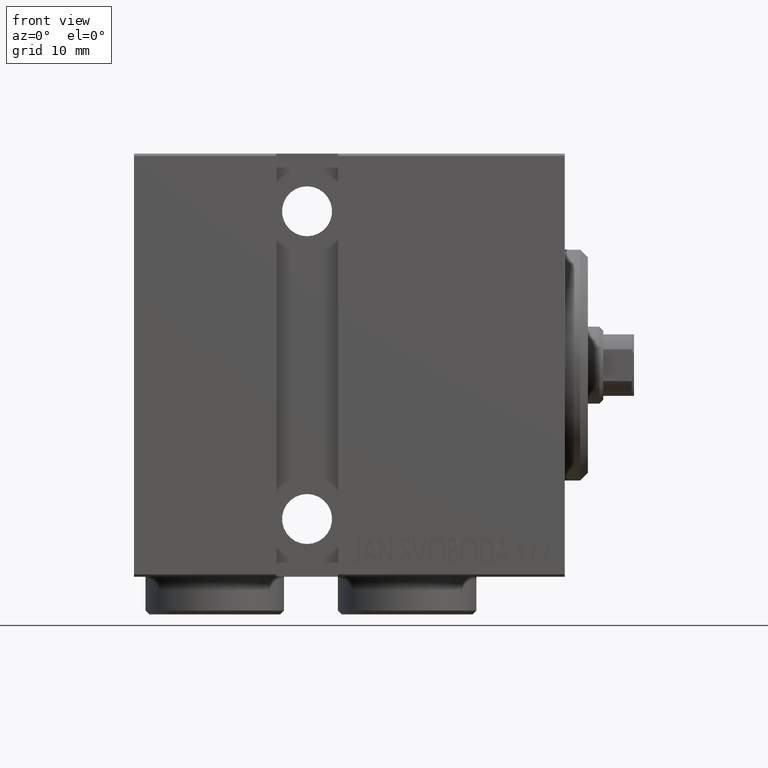
[diagram: clean part render]
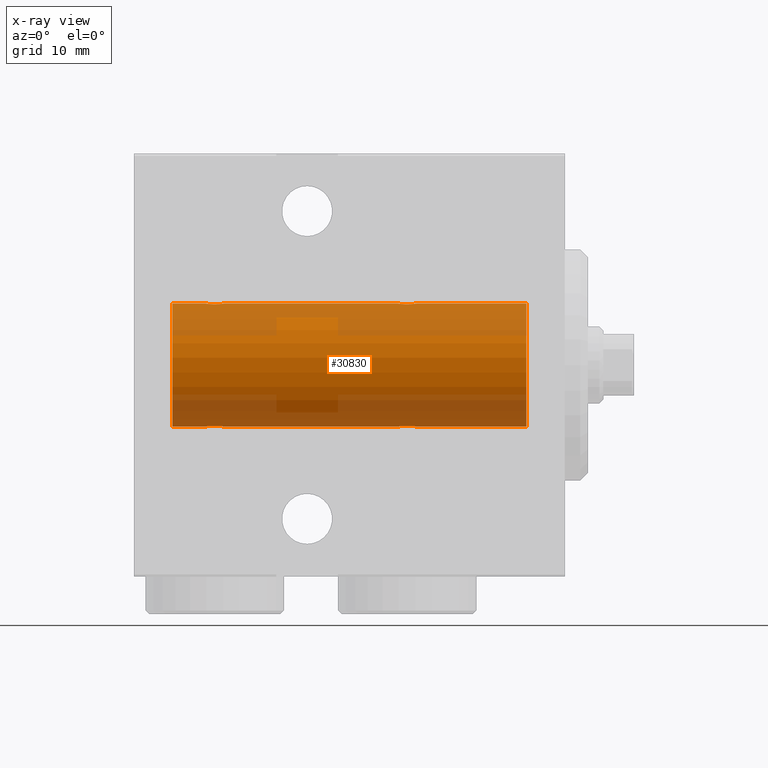
[diagram: x-ray — body ghosted, one internal face saturated and labeled with its STEP entity id]
A machine part, front view, then the same camera in x-ray: the body is ghosted and one INTERNAL B-rep face — a face not visible from any outside direction — is saturated and labeled: STEP entity #30830.
In plain terms, the highlighted cylindrical surface (partial cylindrical patch) has radius 8 mm, axis along (1, 0, -0).
Its self-contained STEP definition (entity closure, byte-faithful):
#101 = LINE ( 'NONE', #20419, #5134 ) ;
#809 = CARTESIAN_POINT ( 'NONE',  ( 45.66380854908764775, 1.249938428426579540, 7.901750054830717573 ) ) ;
#884 = CARTESIAN_POINT ( 'NONE',  ( 45.82459038316879685, 1.209888574283866980, -7.907997942808293601 ) ) ;
#937 = CARTESIAN_POINT ( 'NONE',  ( 20.41880150506445091, 1.250030652953407762, 7.901735465557271354 ) ) ;
#1016 = EDGE_CURVE ( 'NONE', #24672, #5187, #25077, .T. ) ;
#1116 = AXIS2_PLACEMENT_3D ( 'NONE', #3179, #20583, #23303 ) ;
#1117 = CARTESIAN_POINT ( 'NONE',  ( 46.50031982237067751, 0.7674545364220052290, -7.963965305651049320 ) ) ;
#1295 = EDGE_CURVE ( 'NONE', #14791, #41616, #14912, .T. ) ;
#1326 = CARTESIAN_POINT ( 'NONE',  ( 46.12982270639373183, 1.092113850918999818, -7.925358570881163800 ) ) ;
#1373 = CARTESIAN_POINT ( 'NONE',  ( 19.25000000000000355, -4.052141811848771341E-23, 7.999999999999998224 ) ) ;
#1595 = CARTESIAN_POINT ( 'NONE',  ( 19.31391055412277069, 0.4029817482954574648, 7.990203133273719338 ) ) ;
#1609 = CARTESIAN_POINT ( 'NONE',  ( 51.00000000000000000, 9.797174393178823685E-16, -7.999999999999998224 ) ) ;
#1639 = VECTOR ( 'NONE', #10267, 1000.000000000000000 ) ;
#1676 = VECTOR ( 'NONE', #33709, 1000.000000000000000 ) ;
#1779 = CARTESIAN_POINT ( 'NONE',  ( 44.87074834296262082, 1.092266057037466265, -7.925334523600929160 ) ) ;
#1853 = CIRCLE ( 'NONE', #1116, 7.999999999999998224 ) ;
#2363 = ORIENTED_EDGE ( 'NONE', *, *, #22024, .T. ) ;
#2923 = DIRECTION ( 'NONE',  ( -1.000000000000000000, -0.000000000000000000, -0.000000000000000000 ) ) ;
#3179 = CARTESIAN_POINT ( 'NONE',  ( 51.00000000000000000, 0.000000000000000000, 0.000000000000000000 ) ) ;
#4412 = VERTEX_POINT ( 'NONE', #21313 ) ;
#4881 = CARTESIAN_POINT ( 'NONE',  ( 46.74181525892407052, 0.1645871186493928495, -7.998709545350109806 ) ) ;
#5134 = VECTOR ( 'NONE', #43879, 1000.000000000000000 ) ;
#5187 = VERTEX_POINT ( 'NONE', #40761 ) ;
#5192 = CARTESIAN_POINT ( 'NONE',  ( 44.73260908389369916, 1.000368629246204843, 7.938072339095200824 ) ) ;
#5210 = CARTESIAN_POINT ( 'NONE',  ( 19.40826977845302537, 0.6304521543648575754, -7.976560245937306171 ) ) ;
#5630 = CARTESIAN_POINT ( 'NONE',  ( 45.82849869077222138, 1.217000984963205967, 7.907141142849010151 ) ) ;
#5637 = EDGE_CURVE ( 'NONE', #11775, #31335, #36059, .T. ) ;
#5647 = EDGE_CURVE ( 'NONE', #24070, #33244, #1853, .T. ) ;
#5839 = CARTESIAN_POINT ( 'NONE',  ( 46.74999999999999289, -8.213474395867002827E-16, 7.999999999999998224 ) ) ;
#6822 = ORIENTED_EDGE ( 'NONE', *, *, #13249, .F. ) ;
#6951 = CARTESIAN_POINT ( 'NONE',  ( 44.25000000000000711, -6.574401834785964054E-15, -7.999999999999998224 ) ) ;
#7593 = CARTESIAN_POINT ( 'NONE',  ( 45.58119849493557751, 1.250030652953401322, -7.901735465557271354 ) ) ;
#7762 = EDGE_LOOP ( 'NONE', ( #28486, #19789, #22160, #30162, #29212, #25368, #13937, #43074, #6822, #2363, #14387, #10268 ) ) ;
#8536 = CARTESIAN_POINT ( 'NONE',  ( 46.49884501198091158, 0.7689725568822900481, 7.963798983873341619 ) ) ;
#8553 = CARTESIAN_POINT ( 'NONE',  ( 19.87074834296262438, 1.092266057037466487, -7.925334523600932712 ) ) ;
#8723 = CARTESIAN_POINT ( 'NONE',  ( 19.87017729360625395, 1.092113850919000928, 7.925358570881162024 ) ) ;
#9001 = CARTESIAN_POINT ( 'NONE',  ( 21.75000000000000000, 0.08164616652084619175, -7.999999999999998224 ) ) ;
#9188 = CARTESIAN_POINT ( 'NONE',  ( 44.25000000000001421, 0.08164616652084527582, 7.999999999999998224 ) ) ;
#9230 = DIRECTION ( 'NONE',  ( -1.000000000000000000, -0.000000000000000000, -0.000000000000000000 ) ) ;
#9598 = LINE ( 'NONE', #44006, #1639 ) ;
#10075 = DIRECTION ( 'NONE',  ( 0.000000000000000000, 0.000000000000000000, 1.000000000000000000 ) ) ;
#10267 = DIRECTION ( 'NONE',  ( -1.000000000000000000, -0.000000000000000000, -0.000000000000000000 ) ) ;
#10268 = ORIENTED_EDGE ( 'NONE', *, *, #1295, .T. ) ;
#11199 = CARTESIAN_POINT ( 'NONE',  ( 20.33582908309688975, 1.241868426634447298, 7.903038949453013551 ) ) ;
#11405 = CARTESIAN_POINT ( 'NONE',  ( 21.49884501198092579, 0.7689725568822877166, 7.963798983873341619 ) ) ;
#11475 = VECTOR ( 'NONE', #2923, 1000.000000000000000 ) ;
#11630 = CARTESIAN_POINT ( 'NONE',  ( 21.71733208341543175, 0.3277916934117525161, 7.994719249713582165 ) ) ;
#11684 = CARTESIAN_POINT ( 'NONE',  ( 20.17150130922778573, 1.217000984963200860, -7.907141142849008375 ) ) ;
#11775 = VERTEX_POINT ( 'NONE', #13368 ) ;
#12332 = CARTESIAN_POINT ( 'NONE',  ( 45.09742586614095217, 1.186236229830393452, 7.911627449023366232 ) ) ;
#13249 = EDGE_CURVE ( 'NONE', #35853, #31335, #22825, .T. ) ;
#13254 = CARTESIAN_POINT ( 'NONE',  ( 51.00000000000000000, 0.000000000000000000, 7.999999999999998224 ) ) ;
#13368 = CARTESIAN_POINT ( 'NONE',  ( 4.999999999999997335, 0.000000000000000000, 7.999999999999998224 ) ) ;
#13431 = CARTESIAN_POINT ( 'NONE',  ( 4.999999999999997335, 0.000000000000000000, 0.000000000000000000 ) ) ;
#13520 = DIRECTION ( 'NONE',  ( 0.000000000000000000, 0.000000000000000000, 1.000000000000000000 ) ) ;
#13785 = CARTESIAN_POINT ( 'NONE',  ( 46.74999999999999289, 9.797173987957720246E-16, -7.999999999999998224 ) ) ;
#13937 = ORIENTED_EDGE ( 'NONE', *, *, #31970, .T. ) ;
#13975 = DIRECTION ( 'NONE',  ( -1.000000000000000000, -0.000000000000000000, -0.000000000000000000 ) ) ;
#14387 = ORIENTED_EDGE ( 'NONE', *, *, #27807, .F. ) ;
#14411 = CARTESIAN_POINT ( 'NONE',  ( 45.17540961683120315, 1.209888574283871199, 7.907997942808294489 ) ) ;
#14551 = CARTESIAN_POINT ( 'NONE',  ( 20.66380854908764064, 1.249938428426578652, 7.901750054830715797 ) ) ;
#14766 = CARTESIAN_POINT ( 'NONE',  ( 21.26853298044905216, 0.9991832710565867748, 7.938201675418735448 ) ) ;
#14791 = VERTEX_POINT ( 'NONE', #6951 ) ;
#14912 = B_SPLINE_CURVE_WITH_KNOTS ( 'NONE', 3,
 ( #38211, #38853, #41982, #35277, #21423, #28366, #1779, #35045, #21876, #7593, #35495, #884, #18073, #1326, #21215, #1117, #34840, #28798, #31927, #4881, #18508, #15149 ),
 .UNSPECIFIED., .F., .F.,
 ( 4, 2, 2, 2, 2, 2, 2, 2, 2, 2, 4 ),
 ( 7.505074081152076538E-19, 0.0004892585179630999388, 0.0009785170359261990101, 0.001467775553889298082, 0.001957034071852397587, 0.002201663330833957422, 0.002446292589815517258, 0.002935551107778656445, 0.003424809625741795632, 0.003669438884723368911, 0.003914068143704942625 ),
 .UNSPECIFIED. ) ;
#15029 = CARTESIAN_POINT ( 'NONE',  ( 19.25000000000000711, -6.253246997522681077E-15, -7.999999999999998224 ) ) ;
#15149 = CARTESIAN_POINT ( 'NONE',  ( 46.74999999999999289, 9.797173987957720246E-16, -7.999999999999998224 ) ) ;
#15249 = CARTESIAN_POINT ( 'NONE',  ( 44.49968017762931538, 0.7674545364220040078, 7.963965305651043991 ) ) ;
#15910 = CARTESIAN_POINT ( 'NONE',  ( 45.41880150506444380, 1.250030652953406429, 7.901735465557269578 ) ) ;
#16197 = EDGE_CURVE ( 'NONE', #4412, #24672, #33373, .T. ) ;
#17373 = VECTOR ( 'NONE', #39580, 1000.000000000000000 ) ;
#17988 = B_SPLINE_CURVE_WITH_KNOTS ( 'NONE', 3,
 ( #15029, #39618, #42295, #5210, #39160, #36051, #8553, #11684, #28907, #22196, #29124, #42956, #42531, #42077, #35814, #28670, #32482, #35597, #25121, #25354, #9001, #36261 ),
 .UNSPECIFIED., .F., .F.,
 ( 4, 2, 2, 2, 2, 2, 2, 2, 2, 2, 4 ),
 ( 4.384776375612755932E-19, 0.0004892585179631271522, 0.0009785170359262538708, 0.001467775553889380698, 0.001957034071852507308, 0.002201663330834065842, 0.002446292589815623510, 0.002935551107778730170, 0.003424809625741835964, 0.003669438884723391463, 0.003914068143704946962 ),
 .UNSPECIFIED. ) ;
#18073 = CARTESIAN_POINT ( 'NONE',  ( 45.90257413385905494, 1.186236229830389455, -7.911627449023362679 ) ) ;
#18508 = CARTESIAN_POINT ( 'NONE',  ( 46.75000000000000000, 0.08164616652084634441, -8.000000000000000000 ) ) ;
#18559 = CARTESIAN_POINT ( 'NONE',  ( 19.49968017762932959, 0.7674545364220068944, 7.963965305651043991 ) ) ;
#18828 = CARTESIAN_POINT ( 'NONE',  ( 46.59173022154698884, 0.6304521543648644588, 7.976560245937302618 ) ) ;
#19054 = CARTESIAN_POINT ( 'NONE',  ( 46.71733208341543531, 0.3277916934117521830, 7.994719249713582165 ) ) ;
#19789 = ORIENTED_EDGE ( 'NONE', *, *, #5647, .F. ) ;
#20273 = CARTESIAN_POINT ( 'NONE',  ( 21.75000000000000355, 9.797173987965608855E-16, -7.999999999999998224 ) ) ;
#20419 = CARTESIAN_POINT ( 'NONE',  ( 51.00000000000000000, 0.000000000000000000, 7.999999999999998224 ) ) ;
#20583 = DIRECTION ( 'NONE',  ( -1.000000000000000000, 0.000000000000000000, 0.000000000000000000 ) ) ;
#21215 = CARTESIAN_POINT ( 'NONE',  ( 46.26739091610629373, 1.000368629246204399, -7.938072339095200824 ) ) ;
#21313 = CARTESIAN_POINT ( 'NONE',  ( 44.25000000000000711, -4.052181254894032391E-23, 7.999999999999998224 ) ) ;
#21423 = CARTESIAN_POINT ( 'NONE',  ( 44.50115498801908842, 0.7689725568822843860, -7.963798983873343396 ) ) ;
#21567 = B_SPLINE_CURVE_WITH_KNOTS ( 'NONE', 3,
 ( #5839, #36245, #19054, #18828, #8536, #32887, #29322, #5630, #809, #15910, #29556, #14411, #12332, #32466, #5192, #15249, #26218, #34974, #28890, #39811, #9188, #36450 ),
 .UNSPECIFIED., .F., .F.,
 ( 4, 2, 2, 2, 2, 2, 2, 2, 2, 2, 4 ),
 ( 7.980102535687292301E-19, 0.0004892585179631255259, 0.0009785170359262504013, 0.001467775553889375277, 0.001957034071852499935, 0.002201663330834062373, 0.002446292589815624811, 0.002935551107778730170, 0.003424809625741836398, 0.003669438884723392764, 0.003914068143704949564 ),
 .UNSPECIFIED. ) ;
#21674 = VERTEX_POINT ( 'NONE', #38359 ) ;
#21876 = CARTESIAN_POINT ( 'NONE',  ( 45.33619145091235225, 1.249938428426572656, -7.901750054830718462 ) ) ;
#21927 = CARTESIAN_POINT ( 'NONE',  ( 19.40795032378956364, 0.6298709050361938067, 7.976604806854522778 ) ) ;
#22024 = EDGE_CURVE ( 'NONE', #35853, #36933, #17988, .T. ) ;
#22160 = ORIENTED_EDGE ( 'NONE', *, *, #25785, .T. ) ;
#22196 = CARTESIAN_POINT ( 'NONE',  ( 20.58119849493555620, 1.250030652953401988, -7.901735465557267801 ) ) ;
#22825 = LINE ( 'NONE', #30418, #11475 ) ;
#23303 = DIRECTION ( 'NONE',  ( 0.000000000000000000, 0.000000000000000000, 1.000000000000000000 ) ) ;
#24035 = CARTESIAN_POINT ( 'NONE',  ( 21.75000000000000000, -5.069746561688950233E-16, 7.999999999999998224 ) ) ;
#24070 = VERTEX_POINT ( 'NONE', #31993 ) ;
#24442 = VECTOR ( 'NONE', #9230, 1000.000000000000000 ) ;
#24669 = AXIS2_PLACEMENT_3D ( 'NONE', #13431, #37350, #10075 ) ;
#24672 = VERTEX_POINT ( 'NONE', #24035 ) ;
#24863 = CARTESIAN_POINT ( 'NONE',  ( 19.25818474107593659, 0.1645871186493936822, 7.998709545350108918 ) ) ;
#25077 = B_SPLINE_CURVE_WITH_KNOTS ( 'NONE', 3,
 ( #39111, #31760, #11630, #35758, #11405, #14766, #31530, #42475, #14551, #937, #11199, #38673, #28206, #8723, #25731, #18559, #21927, #1595, #28621, #24863, #38465, #1373 ),
 .UNSPECIFIED., .F., .F.,
 ( 4, 2, 2, 2, 2, 2, 2, 2, 2, 2, 4 ),
 ( 4.925698363725794783E-19, 0.0004892585179631285617, 0.0009785170359262564729, 0.001467775553889384601, 0.001957034071852512512, 0.002201663330834071480, 0.002446292589815630015, 0.002935551107778737977, 0.003424809625741846372, 0.003669438884723400570, 0.003914068143704954768 ),
 .UNSPECIFIED. ) ;
#25121 = CARTESIAN_POINT ( 'NONE',  ( 21.70976650520091411, 0.3250523954932730830, -7.993796610540221614 ) ) ;
#25354 = CARTESIAN_POINT ( 'NONE',  ( 21.74181525892405986, 0.1645871186493928773, -7.998709545350109806 ) ) ;
#25368 = ORIENTED_EDGE ( 'NONE', *, *, #1016, .T. ) ;
#25550 = CARTESIAN_POINT ( 'NONE',  ( 4.999999999999997335, 9.797174393178823685E-16, -7.999999999999998224 ) ) ;
#25731 = CARTESIAN_POINT ( 'NONE',  ( 19.73260908389369916, 1.000368629246206842, 7.938072339095197272 ) ) ;
#25785 = EDGE_CURVE ( 'NONE', #24070, #21674, #9598, .T. ) ;
#25977 = LINE ( 'NONE', #1609, #17373 ) ;
#26218 = CARTESIAN_POINT ( 'NONE',  ( 44.40795032378955653, 0.6298709050361934736, 7.976604806854521001 ) ) ;
#26971 = FACE_OUTER_BOUND ( 'NONE', #7762, .T. ) ;
#27807 = EDGE_CURVE ( 'NONE', #14791, #36933, #39752, .T. ) ;
#28159 = EDGE_CURVE ( 'NONE', #21674, #4412, #21567, .T. ) ;
#28206 = CARTESIAN_POINT ( 'NONE',  ( 20.09742586614093085, 1.186236229830392341, 7.911627449023364456 ) ) ;
#28366 = CARTESIAN_POINT ( 'NONE',  ( 44.73146701955094784, 0.9991832710565826670, -7.938201675418733672 ) ) ;
#28486 = ORIENTED_EDGE ( 'NONE', *, *, #42456, .F. ) ;
#28621 = CARTESIAN_POINT ( 'NONE',  ( 19.29023349479908234, 0.3250523954932734716, 7.993796610540219838 ) ) ;
#28670 = CARTESIAN_POINT ( 'NONE',  ( 21.50031982237068107, 0.7674545364220053401, -7.963965305651049320 ) ) ;
#28798 = CARTESIAN_POINT ( 'NONE',  ( 46.68608944587722220, 0.4029817482954573538, -7.990203133273721114 ) ) ;
#28890 = CARTESIAN_POINT ( 'NONE',  ( 44.29023349479908234, 0.3250523954932734161, 7.993796610540221614 ) ) ;
#28907 = CARTESIAN_POINT ( 'NONE',  ( 20.33619145091235936, 1.249938428426572656, -7.901750054830717573 ) ) ;
#29124 = CARTESIAN_POINT ( 'NONE',  ( 20.66417091690312091, 1.241868426634441747, -7.903038949453011774 ) ) ;
#29212 = ORIENTED_EDGE ( 'NONE', *, *, #16197, .T. ) ;
#29322 = CARTESIAN_POINT ( 'NONE',  ( 46.12925165703737207, 1.092266057037471594, 7.925334523600927383 ) ) ;
#29556 = CARTESIAN_POINT ( 'NONE',  ( 45.33582908309688975, 1.241868426634446854, 7.903038949453013551 ) ) ;
#30162 = ORIENTED_EDGE ( 'NONE', *, *, #28159, .T. ) ;
#30418 = CARTESIAN_POINT ( 'NONE',  ( 51.00000000000000000, 9.797174393178823685E-16, -7.999999999999998224 ) ) ;
#30830 = ADVANCED_FACE ( 'NONE', ( #26971 ), #44142, .F. ) ;
#30974 = CARTESIAN_POINT ( 'NONE',  ( 51.00000000000000000, 0.000000000000000000, 0.000000000000000000 ) ) ;
#31335 = VERTEX_POINT ( 'NONE', #25550 ) ;
#31529 = CARTESIAN_POINT ( 'NONE',  ( 51.00000000000000000, 9.797174393178823685E-16, -7.999999999999998224 ) ) ;
#31530 = CARTESIAN_POINT ( 'NONE',  ( 21.12925165703737918, 1.092266057037473592, 7.925334523600929160 ) ) ;
#31760 = CARTESIAN_POINT ( 'NONE',  ( 21.75000000000000000, 0.1654536524218027937, 7.999999999999998224 ) ) ;
#31927 = CARTESIAN_POINT ( 'NONE',  ( 46.70976650520091766, 0.3250523954932729165, -7.993796610540221614 ) ) ;
#31970 = EDGE_CURVE ( 'NONE', #5187, #11775, #101, .T. ) ;
#31993 = CARTESIAN_POINT ( 'NONE',  ( 51.00000000000000000, 0.000000000000000000, 7.999999999999998224 ) ) ;
#32466 = CARTESIAN_POINT ( 'NONE',  ( 44.87017729360625395, 1.092113850919002038, 7.925358570881160247 ) ) ;
#32482 = CARTESIAN_POINT ( 'NONE',  ( 21.59204967621043991, 0.6298709050361920303, -7.976604806854521001 ) ) ;
#32887 = CARTESIAN_POINT ( 'NONE',  ( 46.26853298044905216, 0.9991832710565884401, 7.938201675418735448 ) ) ;
#33244 = VERTEX_POINT ( 'NONE', #31529 ) ;
#33373 = LINE ( 'NONE', #13254, #24442 ) ;
#33709 = DIRECTION ( 'NONE',  ( -1.000000000000000000, -0.000000000000000000, -0.000000000000000000 ) ) ;
#34840 = CARTESIAN_POINT ( 'NONE',  ( 46.59204967621045057, 0.6298709050361936956, -7.976604806854522778 ) ) ;
#34974 = CARTESIAN_POINT ( 'NONE',  ( 44.31391055412278490, 0.4029817482954566876, 7.990203133273719338 ) ) ;
#35045 = CARTESIAN_POINT ( 'NONE',  ( 45.17150130922779283, 1.217000984963200416, -7.907141142849010151 ) ) ;
#35277 = CARTESIAN_POINT ( 'NONE',  ( 44.40826977845300405, 0.6304521543648577975, -7.976560245937304394 ) ) ;
#35495 = CARTESIAN_POINT ( 'NONE',  ( 45.66417091690310315, 1.241868426634441969, -7.903038949453011774 ) ) ;
#35597 = CARTESIAN_POINT ( 'NONE',  ( 21.68608944587722576, 0.4029817482954558550, -7.990203133273719338 ) ) ;
#35758 = CARTESIAN_POINT ( 'NONE',  ( 21.59173022154696753, 0.6304521543648642368, 7.976560245937300841 ) ) ;
#35814 = CARTESIAN_POINT ( 'NONE',  ( 21.26739091610630084, 1.000368629246204399, -7.938072339095202601 ) ) ;
#35853 = VERTEX_POINT ( 'NONE', #38608 ) ;
#36051 = CARTESIAN_POINT ( 'NONE',  ( 19.73146701955095494, 0.9991832710565806686, -7.938201675418735448 ) ) ;
#36059 = CIRCLE ( 'NONE', #24669, 7.999999999999998224 ) ;
#36245 = CARTESIAN_POINT ( 'NONE',  ( 46.75000000000000000, 0.1654536524218023774, 7.999999999999998224 ) ) ;
#36261 = CARTESIAN_POINT ( 'NONE',  ( 21.75000000000000355, 9.797173987965608855E-16, -7.999999999999998224 ) ) ;
#36450 = CARTESIAN_POINT ( 'NONE',  ( 44.25000000000000711, -4.052181254894032391E-23, 7.999999999999998224 ) ) ;
#36549 = AXIS2_PLACEMENT_3D ( 'NONE', #30974, #13975, #13520 ) ;
#36933 = VERTEX_POINT ( 'NONE', #20273 ) ;
#37350 = DIRECTION ( 'NONE',  ( -1.000000000000000000, 0.000000000000000000, 0.000000000000000000 ) ) ;
#38211 = CARTESIAN_POINT ( 'NONE',  ( 44.25000000000000711, -6.574401834785964054E-15, -7.999999999999998224 ) ) ;
#38359 = CARTESIAN_POINT ( 'NONE',  ( 46.74999999999999289, -8.213474395867002827E-16, 7.999999999999998224 ) ) ;
#38465 = CARTESIAN_POINT ( 'NONE',  ( 19.25000000000000355, 0.08164616652084565052, 7.999999999999996447 ) ) ;
#38608 = CARTESIAN_POINT ( 'NONE',  ( 19.25000000000000711, -6.253246997522681077E-15, -7.999999999999998224 ) ) ;
#38673 = CARTESIAN_POINT ( 'NONE',  ( 20.17540961683120315, 1.209888574283871199, 7.907997942808293601 ) ) ;
#38853 = CARTESIAN_POINT ( 'NONE',  ( 44.25000000000001421, 0.1654536524217962712, -8.000000000000000000 ) ) ;
#39111 = CARTESIAN_POINT ( 'NONE',  ( 21.75000000000000000, -5.069746561688950233E-16, 7.999999999999998224 ) ) ;
#39160 = CARTESIAN_POINT ( 'NONE',  ( 19.50115498801909197, 0.7689725568822818325, -7.963798983873345172 ) ) ;
#39580 = DIRECTION ( 'NONE',  ( -1.000000000000000000, -0.000000000000000000, -0.000000000000000000 ) ) ;
#39618 = CARTESIAN_POINT ( 'NONE',  ( 19.25000000000000711, 0.1654536524217966875, -8.000000000000000000 ) ) ;
#39752 = LINE ( 'NONE', #40183, #1676 ) ;
#39811 = CARTESIAN_POINT ( 'NONE',  ( 44.25818474107593659, 0.1645871186493931548, 7.998709545350111583 ) ) ;
#40183 = CARTESIAN_POINT ( 'NONE',  ( 51.00000000000000000, 9.797174393178823685E-16, -7.999999999999998224 ) ) ;
#40761 = CARTESIAN_POINT ( 'NONE',  ( 19.25000000000000355, -4.052141811848771341E-23, 7.999999999999998224 ) ) ;
#41616 = VERTEX_POINT ( 'NONE', #13785 ) ;
#41982 = CARTESIAN_POINT ( 'NONE',  ( 44.28266791658455759, 0.3277916934117462988, -7.994719249713585718 ) ) ;
#42077 = CARTESIAN_POINT ( 'NONE',  ( 21.12982270639374605, 1.092113850918997153, -7.925358570881165576 ) ) ;
#42295 = CARTESIAN_POINT ( 'NONE',  ( 19.28266791658456825, 0.3277916934117463543, -7.994719249713585718 ) ) ;
#42456 = EDGE_CURVE ( 'NONE', #33244, #41616, #25977, .T. ) ;
#42475 = CARTESIAN_POINT ( 'NONE',  ( 20.82849869077221783, 1.217000984963207966, 7.907141142849010151 ) ) ;
#42531 = CARTESIAN_POINT ( 'NONE',  ( 20.90257413385907270, 1.186236229830388345, -7.911627449023368008 ) ) ;
#42956 = CARTESIAN_POINT ( 'NONE',  ( 20.82459038316880395, 1.209888574283866758, -7.907997942808293601 ) ) ;
#43074 = ORIENTED_EDGE ( 'NONE', *, *, #5637, .T. ) ;
#43879 = DIRECTION ( 'NONE',  ( -1.000000000000000000, -0.000000000000000000, -0.000000000000000000 ) ) ;
#44006 = CARTESIAN_POINT ( 'NONE',  ( 51.00000000000000000, 0.000000000000000000, 7.999999999999998224 ) ) ;
#44142 = CYLINDRICAL_SURFACE ( 'NONE', #36549, 7.999999999999998224 ) ;